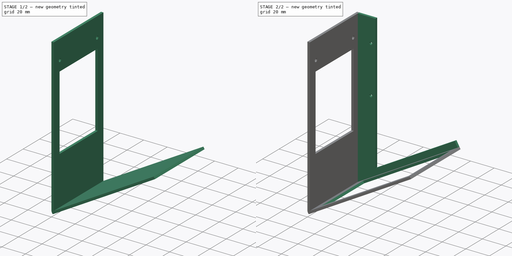
[diagram: build sequence overview — one tinted view per stage of 2, left to right]
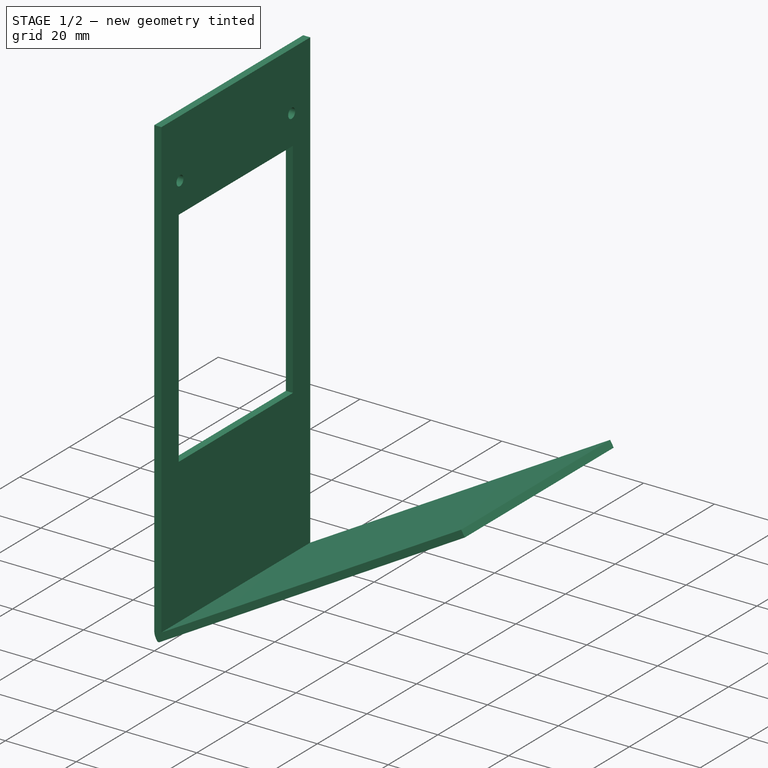
[diagram: stage 1 of 2 — iso view after this stage's code; geometry added in this stage tinted green]
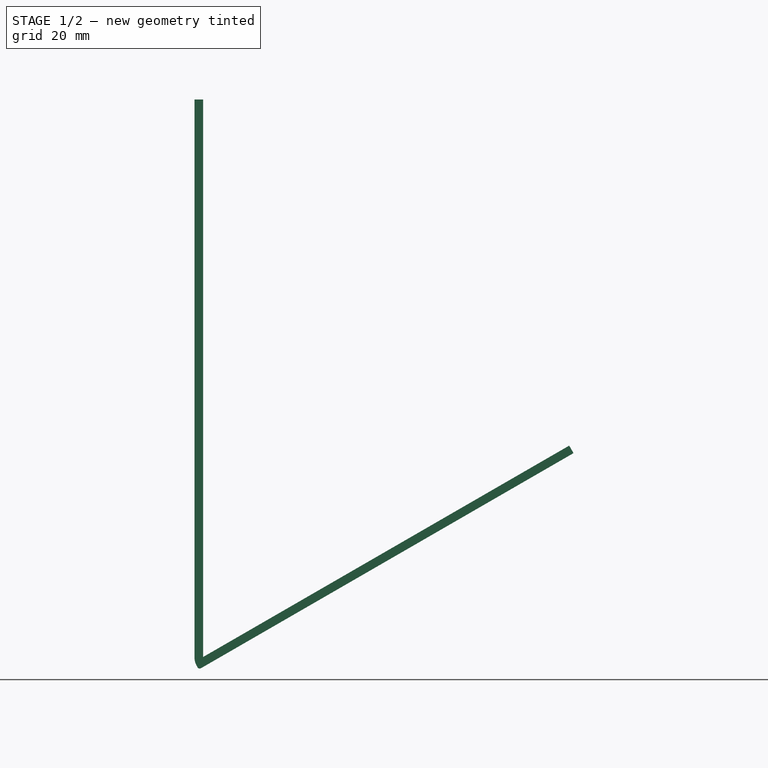
[diagram: stage 1 of 2 — front view after this stage's code; geometry added in this stage tinted green]
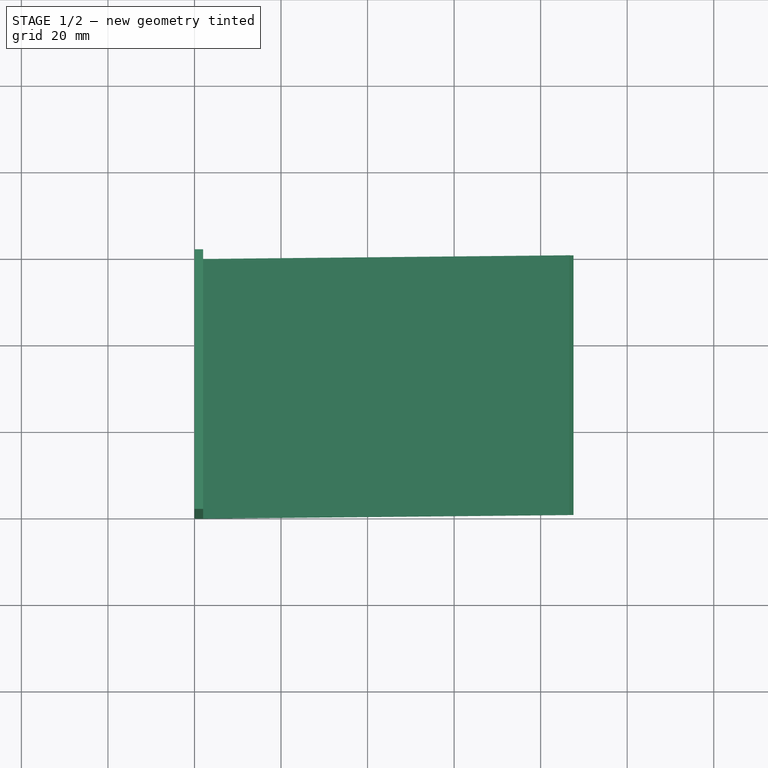
[diagram: stage 1 of 2 — top view after this stage's code; geometry added in this stage tinted green]
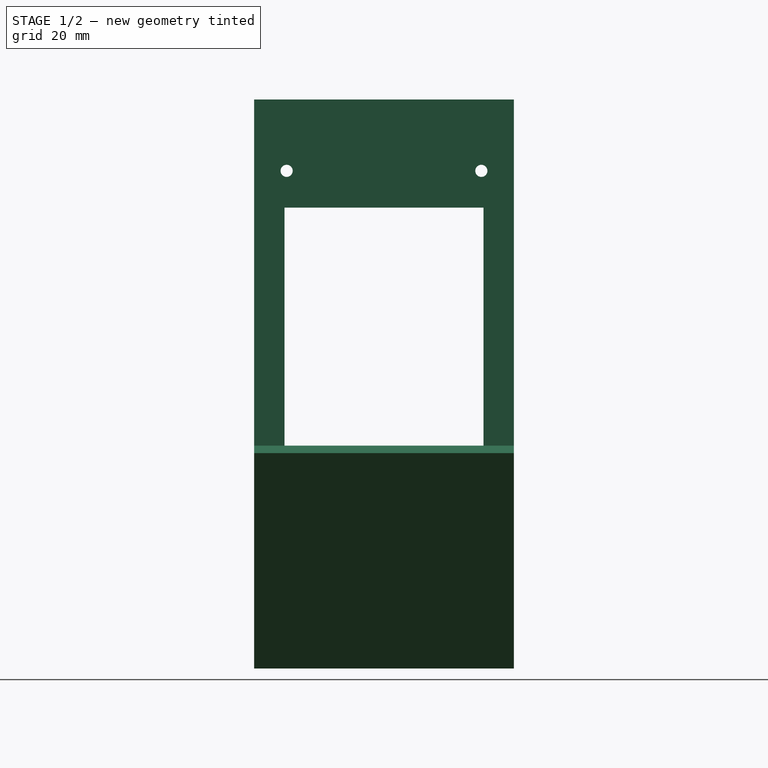
[diagram: stage 1 of 2 — right view after this stage's code; geometry added in this stage tinted green]
FCSTD DOCUMENT  (FreeCAD 0.20R)
Label: chassis
License: All rights reserved
LicenseURL: http://en.wikipedia.org/wiki/All_rights_reserved
objects: Sketcher::SketchObject×4, PartDesign::Pad×2, PartDesign::Pocket×2, PartDesign::Body×1
note: 13 computed .brp shape members not serialized (recipe doc carries the construction recipe); baked Part::Feature solids carry a one-line shape summary decoded from their .brp

FEATURE [Sketcher::SketchObject] Sketch
  FullyConstrained = false
  MapMode = 5
  Placement = pos=(0,0,0) rot=(1,0,0;1.5708rad)
  Support = -> [XZ_Plane]
  sketch-geometry (9):
    g0: LineSegment StartX=2 StartY=130 StartZ=0 EndX=1.8e-15 EndY=130 EndZ=0
    g1: LineSegment StartX=1.8e-15 StartY=130 StartZ=0 EndX=1.8e-15 EndY=1.0921 EndZ=0
    g2: LineSegment StartX=2 StartY=1.1547 StartZ=0 EndX=2 EndY=130 EndZ=0
    g3: LineSegment StartX=2 StartY=1.1547 StartZ=0 EndX=86.6025 EndY=50 EndZ=0
    g4: LineSegment StartX=0.546048 StartY=-0.945783 StartZ=0 EndX=0.709176 EndY=-1.22833 EndZ=0
    g5: LineSegment StartX=86.6025 StartY=50 StartZ=0 EndX=87.6025 EndY=48.2679 EndZ=0
    g6: LineSegment StartX=87.6025 StartY=48.2679 StartZ=0 EndX=1.50391 EndY=-1.44128 EndZ=0
    g7: ArcOfCircle CenterX=4.07576 CenterY=1.0921 CenterZ=0 NormalX=0 NormalY=0 NormalZ=1 AngleXU=0 Radius=4.07576 StartAngle=3.14159 EndAngle=3.66519
    g8: ArcOfCircle CenterX=1.21302 CenterY=-0.937437 CenterZ=0 NormalX=0 NormalY=0 NormalZ=1 AngleXU=0 Radius=0.581785 StartAngle=3.66519 EndAngle=5.23599
  constraints (17):
    c: Coincident(g0,g1)
    c: Coincident(g2,g0)
    c: Horizontal(g0)
    c: Vertical(g1)
    c: Vertical(g2)
    c: Distance(g0) = 2
    c: Angle(g3,g1) = 1.0472
    c: Coincident(g5,g3)
    c: Coincident(g6,g5)
    c: Perpendicular(g4,g3)
    c: Perpendicular(g3,g5)
    c: Distance(g5) = 2
    c: Coincident(g3,g2)
    c: Tangent(g1,g7) = -1.5708
    c: Tangent(g4,g7) = -1.5708
    c: Tangent(g6,g8) = 1.5708
    c: Tangent(g4,g8) = -1.5708
FEATURE [PartDesign::Pad] Pad
  Direction = (0,-1,2e-16)
  Length = 60
  Length2 = 10
  Placement = pos=(0,0,0) rot=(1,0,0;1.5708rad)
  Profile = -> Sketch
  ReferenceAxis = -> Sketch [N_Axis]
  Type = 0
FEATURE [Sketcher::SketchObject] Sketch001
  ExternalGeometry = -> [Pad]
  FullyConstrained = true
  MapMode = 5
  Placement = pos=(2,0,0) rot=(0.707107,0,0.707107;3.14159rad)
  Support = -> [Pad]
  sketch-geometry (6):
    g0: LineSegment StartX=42 StartY=53 StartZ=0 EndX=105 EndY=53 EndZ=0
    g1: LineSegment StartX=105 StartY=53 StartZ=0 EndX=105 EndY=7 EndZ=0
    g2: LineSegment StartX=105 StartY=7 StartZ=0 EndX=42 EndY=7 EndZ=0
    g3: LineSegment StartX=42 StartY=7 StartZ=0 EndX=42 EndY=53 EndZ=0
    g4: Circle CenterX=113.5 CenterY=52.5 CenterZ=0 NormalX=0 NormalY=0 NormalZ=1 AngleXU=0 Radius=1.4
    g5: Circle CenterX=113.5 CenterY=7.5 CenterZ=0 NormalX=0 NormalY=0 NormalZ=1 AngleXU=0 Radius=1.4
  constraints (18):
    c: Coincident(g0,g1)
    c: Coincident(g1,g2)
    c: Coincident(g2,g3)
    c: Coincident(g3,g0)
    c: Horizontal(g0)
    c: Horizontal(g2)
    c: Vertical(g1)
    c: Vertical(g3)
    c: Distance(g0,g-4) = 25
    c: Distance(g0,g-3) = 7
    c: Distance(g1,g-1) = 7
    c: Distance(g0) = 63
    c: Distance(g4,g-3) = 7.5
    c: Distance(g5,g-1) = 7.5
    c: Distance(g4,g-4) = 16.5
    c: Distance(g5,g-4) = 16.5
    c: Diameter(g4) = 2.8
    c: Diameter(g5) = 2.8
FEATURE [PartDesign::Pocket] Pocket
  BaseFeature = -> Pad
  Direction = (-1,0,2e-16)
  Length = 2
  Length2 = 5
  Placement = pos=(0,0,0) rot=(1,0,0;1.5708rad)
  Profile = -> Sketch001
  ReferenceAxis = -> Sketch001 [N_Axis]
  Type = 0
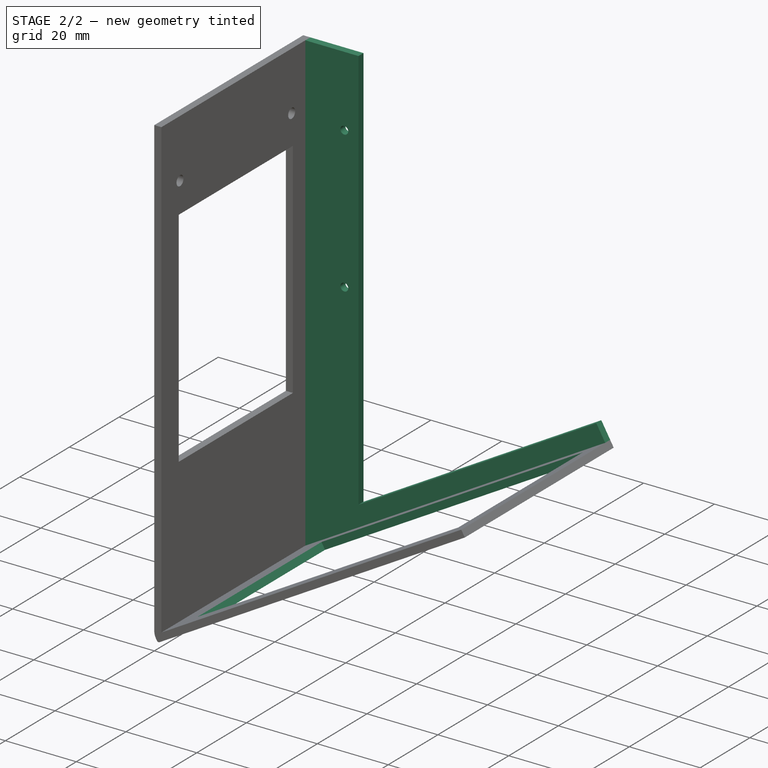
[diagram: stage 2 of 2 — iso view after this stage's code; geometry added in this stage tinted green]
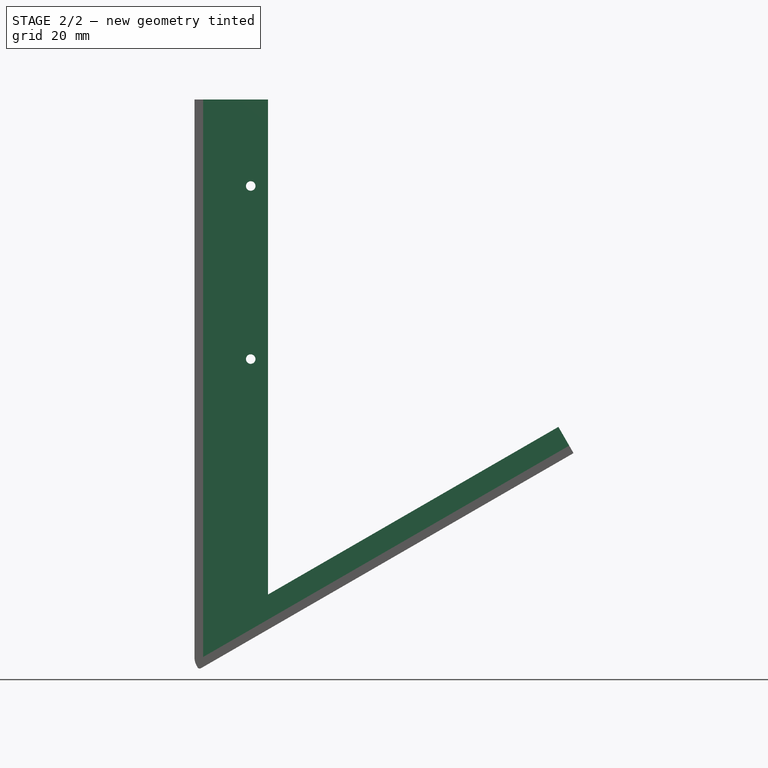
[diagram: stage 2 of 2 — front view after this stage's code; geometry added in this stage tinted green]
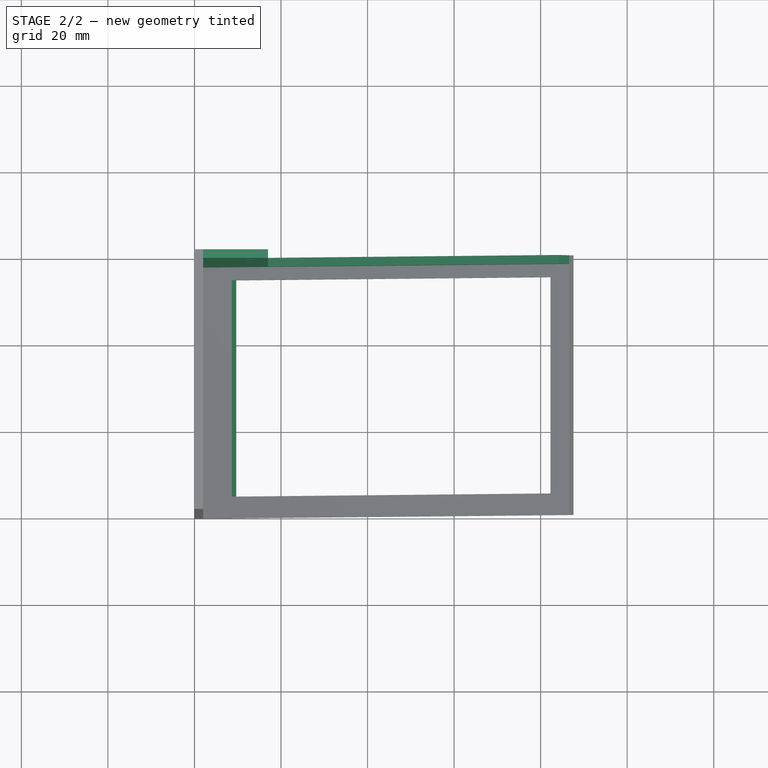
[diagram: stage 2 of 2 — top view after this stage's code; geometry added in this stage tinted green]
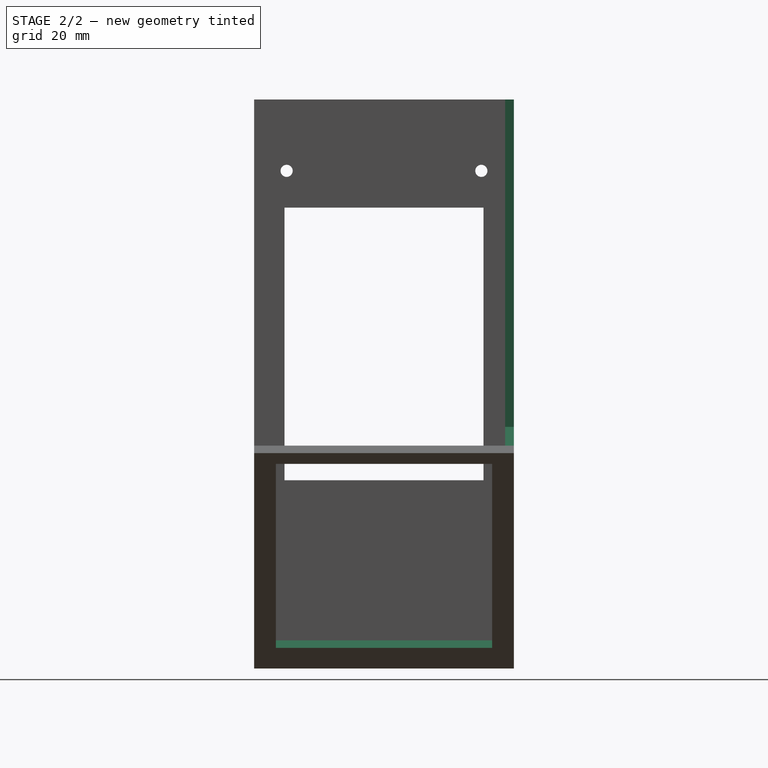
[diagram: stage 2 of 2 — right view after this stage's code; geometry added in this stage tinted green]
FEATURE [Sketcher::SketchObject] Sketch002
  ExternalGeometry = -> [Pocket]
  FullyConstrained = true
  MapMode = 5
  Placement = pos=(5.4e-15,0,-9.3e-15) rot=(-0.258819,0,0.965926;3.14159rad)
  Support = -> [Pocket]
  sketch-geometry (4):
    g0: LineSegment StartX=-95 StartY=55 StartZ=0 EndX=-10 EndY=55 EndZ=0
    g1: LineSegment StartX=-10 StartY=55 StartZ=0 EndX=-10 EndY=5 EndZ=0
    g2: LineSegment StartX=-10 StartY=5 StartZ=0 EndX=-95 EndY=5 EndZ=0
    g3: LineSegment StartX=-95 StartY=5 StartZ=0 EndX=-95 EndY=55 EndZ=0
  constraints (12):
    c: Coincident(g0,g1)
    c: Coincident(g1,g2)
    c: Coincident(g2,g3)
    c: Coincident(g3,g0)
    c: Horizontal(g0)
    c: Horizontal(g2)
    c: Vertical(g1)
    c: Vertical(g3)
    c: Distance(g0,g-3) = 5
    c: Distance(g2,g-1) = 5
    c: Distance(g0,g-4) = 5
    c: Distance(g0) = 85
FEATURE [PartDesign::Pocket] Pocket001
  BaseFeature = -> Pocket
  Direction = (0.5,-2e-16,-0.866025)
  Length = 2.1
  Length2 = 5
  Placement = pos=(0,0,0) rot=(1,0,0;1.5708rad)
  Profile = -> Sketch002
  ReferenceAxis = -> Sketch002 [N_Axis]
  Type = 0
FEATURE [Sketcher::SketchObject] Sketch003
  ExternalGeometry = -> [Pocket001]
  FullyConstrained = true
  MapMode = 5
  Placement = pos=(0,0,0) rot=(-1,0,0;1.5708rad)
  Support = -> [Pocket001]
  sketch-geometry (8):
    g0: LineSegment StartX=2 StartY=-1.1547 StartZ=0 EndX=86.6025 EndY=-50 EndZ=0
    g1: LineSegment StartX=86.6025 StartY=-50 StartZ=0 EndX=84.1025 EndY=-54.3301 EndZ=0
    g2: LineSegment StartX=84.1025 StartY=-54.3301 StartZ=0 EndX=17 EndY=-15.5885 EndZ=0
    g3: LineSegment StartX=17 StartY=-15.5885 StartZ=0 EndX=17 EndY=-130 EndZ=0
    g4: LineSegment StartX=17 StartY=-130 StartZ=0 EndX=2 EndY=-130 EndZ=0
    g5: LineSegment StartX=2 StartY=-130 StartZ=0 EndX=2 EndY=-1.1547 EndZ=0
    g6: Circle CenterX=13 CenterY=-110 CenterZ=0 NormalX=0 NormalY=0 NormalZ=1 AngleXU=0 Radius=1.1
    g7: Circle CenterX=13 CenterY=-70 CenterZ=0 NormalX=0 NormalY=0 NormalZ=1 AngleXU=0 Radius=1.1
  constraints (21):
    c: Coincident(g-4,g0)
    c: Coincident(g0,g-3)
    c: Coincident(g0,g1)
    c: Coincident(g1,g2)
    c: Coincident(g2,g3)
    c: Vertical(g3)
    c: Coincident(g3,g4)
    c: Coincident(g4,g-4)
    c: Coincident(g4,g5)
    c: Coincident(g5,g0)
    c: Perpendicular(g1,g0)
    c: Horizontal(g4)
    c: Distance(g4) = 15
    c: Distance(g1) = 5
    c: Parallel(g0,g2)
    c: Distance(g6,g3) = 4
    c: Distance(g7,g3) = 4
    c: Diameter(g7) = 2.2
    c: Diameter(g6) = 2.2
    c: Distance(g6,g4) = 20
    c: Distance(g6,g7) = 40
FEATURE [PartDesign::Pad] Pad001
  BaseFeature = -> Pocket001
  Direction = (0,1,-2e-16)
  Length = 2
  Length2 = 10
  Placement = pos=(0,0,0) rot=(1,0,0;1.5708rad)
  Profile = -> Sketch003
  ReferenceAxis = -> Sketch003 [N_Axis]
  Reversed = true
  Type = 0
FEATURE [PartDesign::Body] Body
  Group = -> [Sketch,Pad,Sketch001,Pocket,Sketch002,Pocket001,Sketch003,Pad001]
  Origin = -> Origin
  Tip = -> Pad001
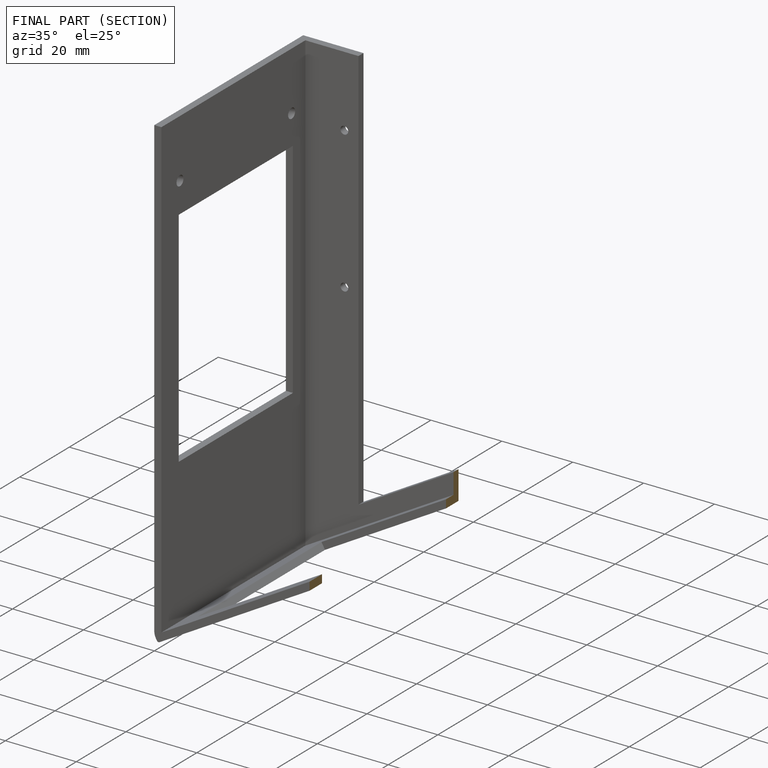
[diagram: finished part — half-section view (interior)]
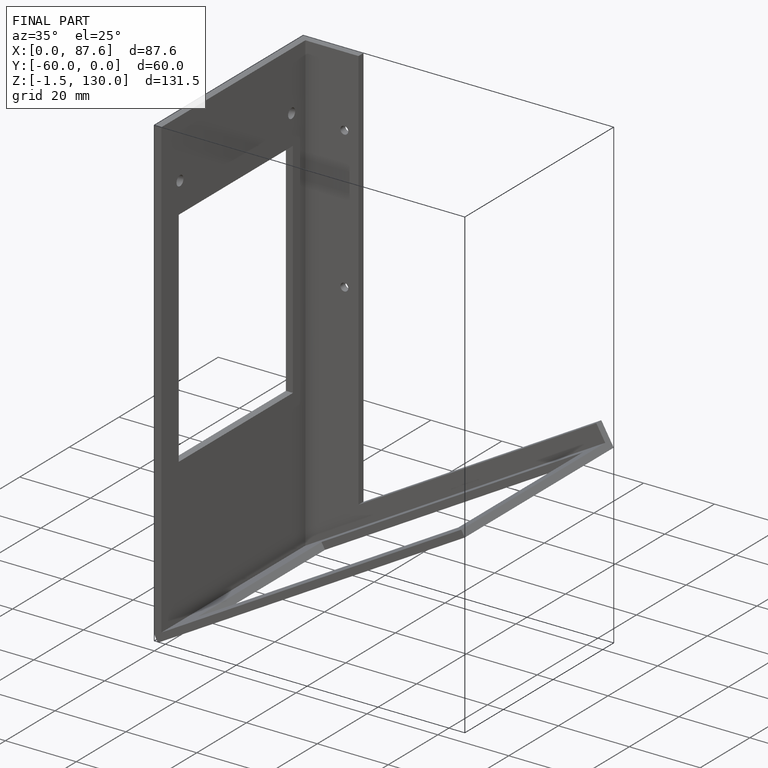
[diagram: finished part — iso view with bounding-box wireframe]
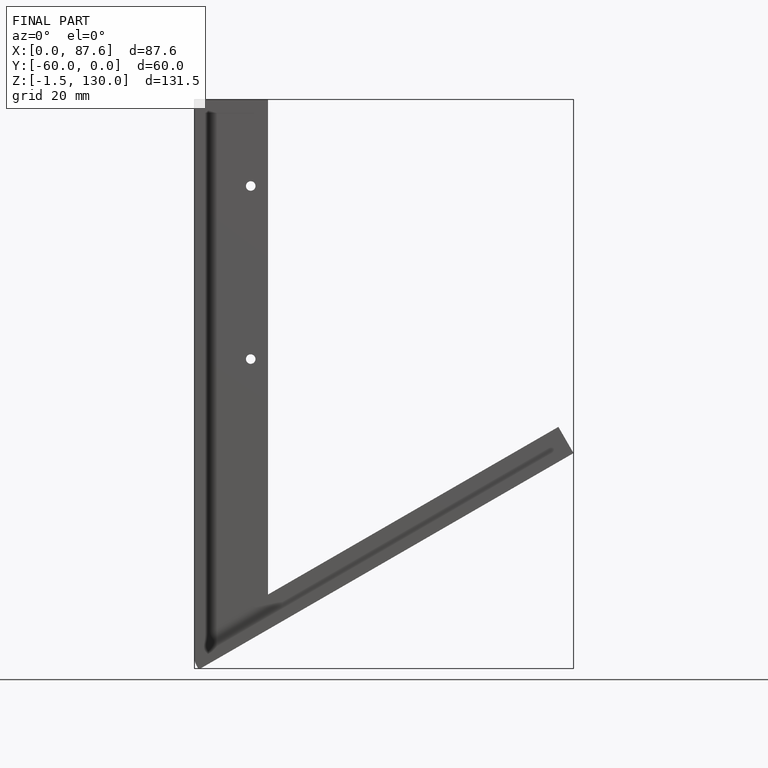
[diagram: finished part — front view with bounding-box wireframe]
